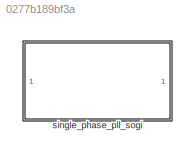
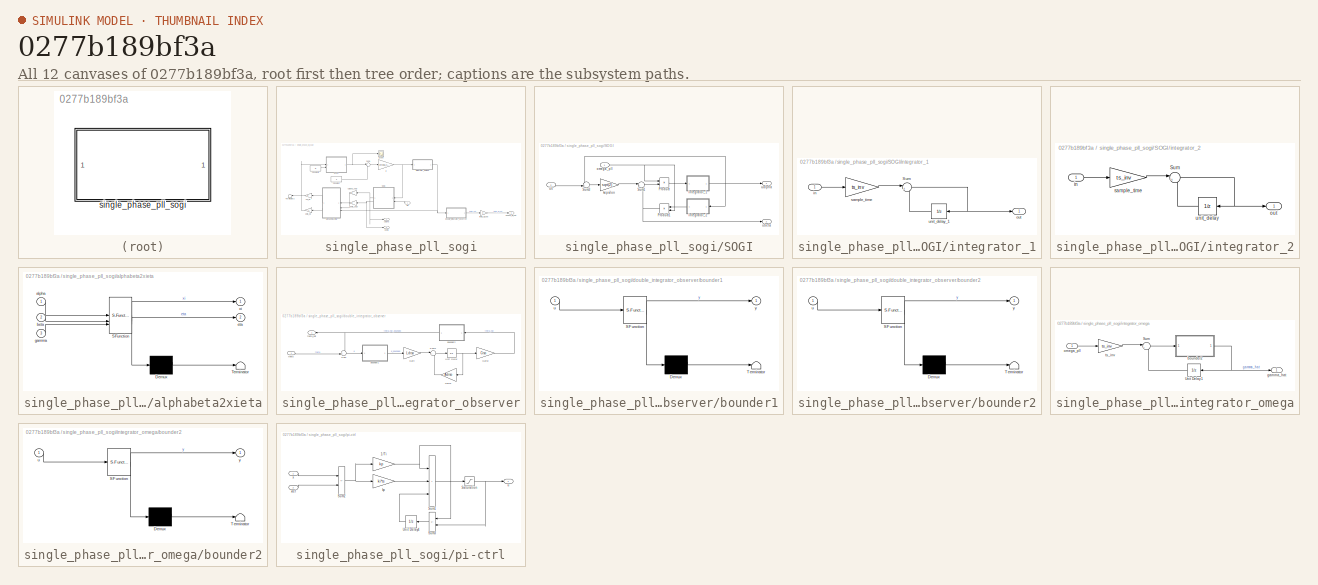
[diagram: thumbnail index - all 12 canvases of the model, root first then tree order]
MODEL slx_0277b189bf3a
KIND library
CONFIG AbsTol = auto
CONFIG EnableMultiTasking = off
CONFIG FixedStep = auto
CONFIG MaxStep = auto
CONFIG MinStep = auto
CONFIG RelTol = 1e-3
CONFIG SampleTimeConstraint = Unconstrained
CONFIG SolverName = VariableStepAuto
CONFIG StartTime = 0.0
CONFIG StopTime = 10.0
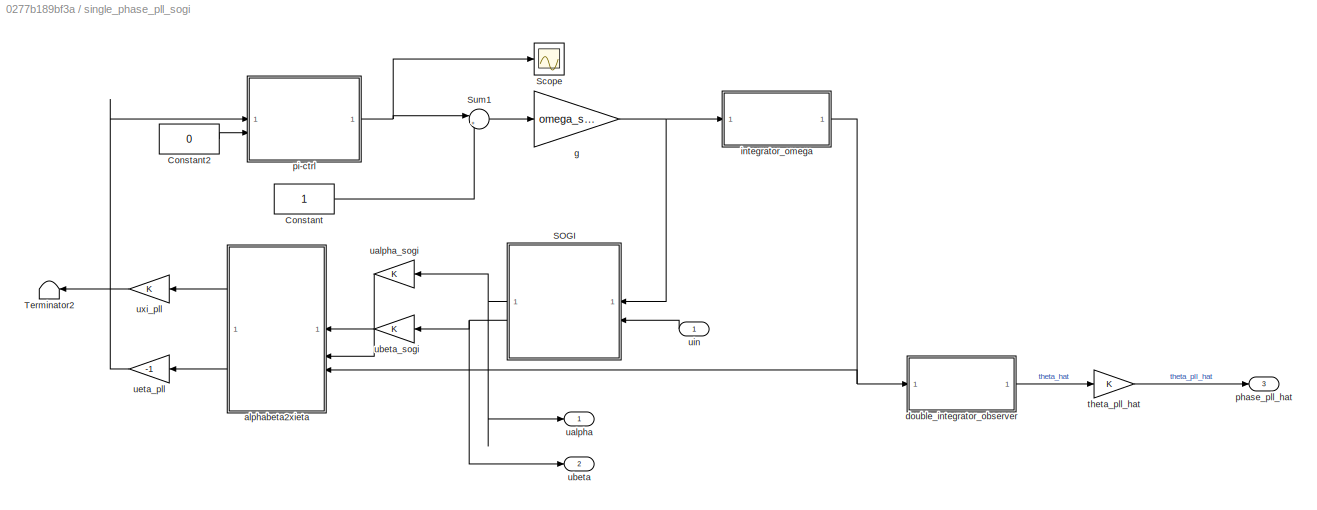
BLOCK [SubSystem] single_phase_pll_sogi
BLOCK [Constant] single_phase_pll_sogi/Constant
BLOCK [Constant] single_phase_pll_sogi/Constant2
  Value = 0
BLOCK [SubSystem] single_phase_pll_sogi/SOGI
BLOCK [Product] single_phase_pll_sogi/SOGI/Product
BLOCK [Product] single_phase_pll_sogi/SOGI/Product1
BLOCK [Sum] single_phase_pll_sogi/SOGI/Sum1
  Inputs = |+-
  NameLocation = top
BLOCK [Sum] single_phase_pll_sogi/SOGI/Sum3
  Inputs = -+|
BLOCK [SubSystem] single_phase_pll_sogi/SOGI/integrator_1
BLOCK [Sum] single_phase_pll_sogi/SOGI/integrator_1/Sum
  Inputs = |++
BLOCK [Inport] single_phase_pll_sogi/SOGI/integrator_1/in
BLOCK [Outport] single_phase_pll_sogi/SOGI/integrator_1/out
BLOCK [Gain] single_phase_pll_sogi/SOGI/integrator_1/sample_time
  Gain = ts_inv
BLOCK [UnitDelay] single_phase_pll_sogi/SOGI/integrator_1/unit_delay_1
  HasFrameUpgradeWarning = on
  SampleTime = -1
BLOCK [SubSystem] single_phase_pll_sogi/SOGI/integrator_2
BLOCK [Sum] single_phase_pll_sogi/SOGI/integrator_2/Sum
  Inputs = |++
BLOCK [Inport] single_phase_pll_sogi/SOGI/integrator_2/in
BLOCK [Outport] single_phase_pll_sogi/SOGI/integrator_2/out
BLOCK [Gain] single_phase_pll_sogi/SOGI/integrator_2/sample_time
  Gain = ts_inv
BLOCK [UnitDelay] single_phase_pll_sogi/SOGI/integrator_2/unit_delay
  HasFrameUpgradeWarning = on
  SampleTime = -1
BLOCK [Gain] single_phase_pll_sogi/SOGI/kepsilon
  Gain = sqrt(2)
BLOCK [Inport] single_phase_pll_sogi/SOGI/omega_pll
BLOCK [Outport] single_phase_pll_sogi/SOGI/ualpha
BLOCK [Outport] single_phase_pll_sogi/SOGI/ubeta
  Port = 2
BLOCK [Inport] single_phase_pll_sogi/SOGI/us
  Port = 2
BLOCK [Scope] single_phase_pll_sogi/Scope
  ActiveDisplayYMaximum = 0.046740470703918784
  ActiveDisplayYMinimum = -0.035554129963767195
  DataLoggingVariableName = ScopeData16
  Floating = off
  GraphicalSettings = {"Style":{"BackgroundColor":[0.12941176470588237,0.12941176470588237,0.12941176470588237],"AxesColor":[0.07058823529411765,0.07058823529411765,0.07058823529411765],"LabelsColor":[0.8509803921568627,0.8509803921568627,0.8509803921568627],"PreserveColors":false,"Visible":[true],"LineStyle":["-"],"LineWidth":[1.5],"BarWidth":[0.9],"LineColor":["auto"],"LineFaceAlpha":[1],"LineEdgeAlpha":[1],"Marker":...<+2005ch>
  MultipleDisplayCache = [{"MaxYLimMag":2.4684250178246252,"MaxYLimReal":0.046740470703918784,"MinYLimMag":0,"MinYLimReal":-0.035554129963767195,"PlotAsMagnitudePhase":false,"ShowGrid":true,"ShowLegend":false,"Title":"%<SignalLabel>","YLabel":""}]
  NumInputPorts = 1
  ScopeFrameLocation = window
  WasSavedAsWebScope = on
  WindowPosition = [744.000000,330.000000,560.000000,420.000000,]
BLOCK [Sum] single_phase_pll_sogi/Sum1
  Inputs = |++
BLOCK [Terminator] single_phase_pll_sogi/Terminator2
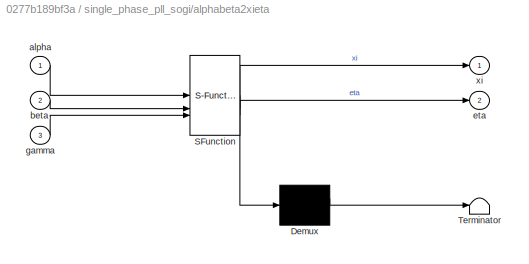
BLOCK [SubSystem] single_phase_pll_sogi/alphabeta2xieta
  ErrorFcn = Stateflow.Translate.translate
  PermitHierarchicalResolution = ExplicitOnly
  SFBlockType = MATLAB Function
  TreatAsAtomicUnit = on
BLOCK [Demux] single_phase_pll_sogi/alphabeta2xieta/ Demux 
  Outputs = 1
BLOCK [S-Function] single_phase_pll_sogi/alphabeta2xieta/ SFunction 
  EnableBusSupport = off
  FunctionName = sf_sfun
  PortCounts = [3 3]
  SFcnIsStateOwnerBlock = off
  SFunctionDeploymentMode = off
  Tag = Stateflow S-Function 8
BLOCK [Terminator] single_phase_pll_sogi/alphabeta2xieta/ Terminator 
BLOCK [Inport] single_phase_pll_sogi/alphabeta2xieta/alpha
BLOCK [Inport] single_phase_pll_sogi/alphabeta2xieta/beta
  Port = 2
BLOCK [Outport] single_phase_pll_sogi/alphabeta2xieta/eta
  Port = 2
BLOCK [Inport] single_phase_pll_sogi/alphabeta2xieta/gamma
  Port = 3
BLOCK [Outport] single_phase_pll_sogi/alphabeta2xieta/xi
BLOCK [SubSystem] single_phase_pll_sogi/double_integrator_observer
BLOCK [Gain] single_phase_pll_sogi/double_integrator_observer/Gain
  Gain = Ldrso
  Multiplication = Matrix(K*u)
BLOCK [Gain] single_phase_pll_sogi/double_integrator_observer/Gain1
  Gain = Adrso
  Multiplication = Matrix(K*u)
  NameLocation = top
BLOCK [Gain] single_phase_pll_sogi/double_integrator_observer/Gain2
  Gain = Crso
  Multiplication = Matrix(K*u)
BLOCK [Sum] single_phase_pll_sogi/double_integrator_observer/Sum
  Inputs = -+|
BLOCK [Sum] single_phase_pll_sogi/double_integrator_observer/Sum1
  Inputs = |++
BLOCK [UnitDelay] single_phase_pll_sogi/double_integrator_observer/Unit Delay
  HasFrameUpgradeWarning = on
  SampleTime = -1
BLOCK [SubSystem] single_phase_pll_sogi/double_integrator_observer/bounder1
  ErrorFcn = Stateflow.Translate.translate
  PermitHierarchicalResolution = ExplicitOnly
  SFBlockType = MATLAB Function
  TreatAsAtomicUnit = on
  TreatAsGroupedWhenPropagatingVariantConditions = off
BLOCK [Demux] single_phase_pll_sogi/double_integrator_observer/bounder1/ Demux 
  Outputs = 1
BLOCK [S-Function] single_phase_pll_sogi/double_integrator_observer/bounder1/ SFunction 
  EnableBusSupport = off
  FunctionName = sf_sfun
  PortCounts = [1 2]
  SFcnIsStateOwnerBlock = off
  SFunctionDeploymentMode = off
  Tag = Stateflow S-Function 10
BLOCK [Terminator] single_phase_pll_sogi/double_integrator_observer/bounder1/ Terminator 
BLOCK [Inport] single_phase_pll_sogi/double_integrator_observer/bounder1/u
BLOCK [Outport] single_phase_pll_sogi/double_integrator_observer/bounder1/y
  VectorParamsAs1DForOutWhenUnconnected = off
BLOCK [SubSystem] single_phase_pll_sogi/double_integrator_observer/bounder2
  ErrorFcn = Stateflow.Translate.translate
  PermitHierarchicalResolution = ExplicitOnly
  SFBlockType = MATLAB Function
  TreatAsAtomicUnit = on
  TreatAsGroupedWhenPropagatingVariantConditions = off
BLOCK [Demux] single_phase_pll_sogi/double_integrator_observer/bounder2/ Demux 
  Outputs = 1
BLOCK [S-Function] single_phase_pll_sogi/double_integrator_observer/bounder2/ SFunction 
  EnableBusSupport = off
  FunctionName = sf_sfun
  PortCounts = [1 2]
  SFcnIsStateOwnerBlock = off
  SFunctionDeploymentMode = off
  Tag = Stateflow S-Function 11
BLOCK [Terminator] single_phase_pll_sogi/double_integrator_observer/bounder2/ Terminator 
BLOCK [Inport] single_phase_pll_sogi/double_integrator_observer/bounder2/u
BLOCK [Outport] single_phase_pll_sogi/double_integrator_observer/bounder2/y
  VectorParamsAs1DForOutWhenUnconnected = off
BLOCK [Inport] single_phase_pll_sogi/double_integrator_observer/theta
BLOCK [Outport] single_phase_pll_sogi/double_integrator_observer/theta_hat
BLOCK [Gain] single_phase_pll_sogi/g
  Gain = omega_set
  NameLocation = top
BLOCK [SubSystem] single_phase_pll_sogi/integrator_omega
BLOCK [Sum] single_phase_pll_sogi/integrator_omega/Sum
  Inputs = |++
BLOCK [UnitDelay] single_phase_pll_sogi/integrator_omega/Unit Delay1
  HasFrameUpgradeWarning = on
  SampleTime = -1
BLOCK [SubSystem] single_phase_pll_sogi/integrator_omega/bounder2
  ErrorFcn = Stateflow.Translate.translate
  PermitHierarchicalResolution = ExplicitOnly
  SFBlockType = MATLAB Function
  TreatAsAtomicUnit = on
  TreatAsGroupedWhenPropagatingVariantConditions = off
BLOCK [Demux] single_phase_pll_sogi/integrator_omega/bounder2/ Demux 
  Outputs = 1
BLOCK [S-Function] single_phase_pll_sogi/integrator_omega/bounder2/ SFunction 
  EnableBusSupport = off
  FunctionName = sf_sfun
  PortCounts = [1 2]
  SFcnIsStateOwnerBlock = off
  SFunctionDeploymentMode = off
  Tag = Stateflow S-Function 9
BLOCK [Terminator] single_phase_pll_sogi/integrator_omega/bounder2/ Terminator 
BLOCK [Inport] single_phase_pll_sogi/integrator_omega/bounder2/u
BLOCK [Outport] single_phase_pll_sogi/integrator_omega/bounder2/y
  VectorParamsAs1DForOutWhenUnconnected = off
BLOCK [Outport] single_phase_pll_sogi/integrator_omega/gamma_hat
BLOCK [Inport] single_phase_pll_sogi/integrator_omega/omega_pll
BLOCK [Gain] single_phase_pll_sogi/integrator_omega/ts_inv
  Gain = ts_inv
BLOCK [Outport] single_phase_pll_sogi/phase_pll_hat
  Port = 3
BLOCK [SubSystem] single_phase_pll_sogi/pi-ctrl
BLOCK [Gain] single_phase_pll_sogi/pi-ctrl/1//Ti
  Gain = kp
  OutDataTypeStr = Inherit: Same as input
  ParamDataTypeStr = Inherit: Same as input
  SaturateOnIntegerOverflow = on
BLOCK [Saturate] single_phase_pll_sogi/pi-ctrl/Saturation
  LowerLimit = sat_neg
  UpperLimit = sat_pos
BLOCK [Sum] single_phase_pll_sogi/pi-ctrl/Sum1
  IconShape = rectangular
  Inputs = +++
  SaturateOnIntegerOverflow = on
BLOCK [Sum] single_phase_pll_sogi/pi-ctrl/Sum2
  IconShape = rectangular
  Inputs = -+
  SaturateOnIntegerOverflow = on
BLOCK [Sum] single_phase_pll_sogi/pi-ctrl/Sum3
  IconShape = rectangular
  Inputs = -+
  NameLocation = top
  SaturateOnIntegerOverflow = on
BLOCK [UnitDelay] single_phase_pll_sogi/pi-ctrl/Unit Delay4
  HasFrameUpgradeWarning = on
  SampleTime = -1
BLOCK [Gain] single_phase_pll_sogi/pi-ctrl/kp
  Gain = ki*ts
  OutDataTypeStr = Inherit: Same as input
  ParamDataTypeStr = Inherit: Same as input
  SaturateOnIntegerOverflow = on
BLOCK [Outport] single_phase_pll_sogi/pi-ctrl/u
BLOCK [Inport] single_phase_pll_sogi/pi-ctrl/x
BLOCK [Inport] single_phase_pll_sogi/pi-ctrl/xref
  Port = 2
BLOCK [Gain] single_phase_pll_sogi/theta_pll_hat
BLOCK [Outport] single_phase_pll_sogi/ualpha
BLOCK [Gain] single_phase_pll_sogi/ualpha_sogi
BLOCK [Outport] single_phase_pll_sogi/ubeta
  Port = 2
BLOCK [Gain] single_phase_pll_sogi/ubeta_sogi
BLOCK [Gain] single_phase_pll_sogi/ueta_pll
  Gain = -1
BLOCK [Inport] single_phase_pll_sogi/uin
BLOCK [Gain] single_phase_pll_sogi/uxi_pll
LINE single_phase_pll_sogi/Constant2:1 -> single_phase_pll_sogi/pi-ctrl:2
LINE single_phase_pll_sogi/Constant:1 -> single_phase_pll_sogi/Sum1:2
NET single_phase_pll_sogi/SOGI/Product1:1 -> single_phase_pll_sogi/SOGI/Sum1:2, single_phase_pll_sogi/SOGI/ubeta:1
LINE single_phase_pll_sogi/SOGI/Product:1 -> single_phase_pll_sogi/SOGI/integrator_1:1
LINE single_phase_pll_sogi/SOGI/Sum1:1 -> single_phase_pll_sogi/SOGI/Product:2
LINE single_phase_pll_sogi/SOGI/Sum3:1 -> single_phase_pll_sogi/SOGI/kepsilon:1
NET single_phase_pll_sogi/SOGI/integrator_1/Sum:1 -> single_phase_pll_sogi/SOGI/integrator_1/out:1, single_phase_pll_sogi/SOGI/integrator_1/unit_delay_1:1
LINE single_phase_pll_sogi/SOGI/integrator_1/in:1 -> single_phase_pll_sogi/SOGI/integrator_1/sample_time:1
LINE single_phase_pll_sogi/SOGI/integrator_1/sample_time:1 -> single_phase_pll_sogi/SOGI/integrator_1/Sum:1
LINE single_phase_pll_sogi/SOGI/integrator_1/unit_delay_1:1 -> single_phase_pll_sogi/SOGI/integrator_1/Sum:2
NET single_phase_pll_sogi/SOGI/integrator_1:1 -> single_phase_pll_sogi/SOGI/Sum3:1, single_phase_pll_sogi/SOGI/integrator_2:1, single_phase_pll_sogi/SOGI/ualpha:1
NET single_phase_pll_sogi/SOGI/integrator_2/Sum:1 -> single_phase_pll_sogi/SOGI/integrator_2/out:1, single_phase_pll_sogi/SOGI/integrator_2/unit_delay:1
LINE single_phase_pll_sogi/SOGI/integrator_2/in:1 -> single_phase_pll_sogi/SOGI/integrator_2/sample_time:1
LINE single_phase_pll_sogi/SOGI/integrator_2/sample_time:1 -> single_phase_pll_sogi/SOGI/integrator_2/Sum:1
LINE single_phase_pll_sogi/SOGI/integrator_2/unit_delay:1 -> single_phase_pll_sogi/SOGI/integrator_2/Sum:2
LINE single_phase_pll_sogi/SOGI/integrator_2:1 -> single_phase_pll_sogi/SOGI/Product1:1
LINE single_phase_pll_sogi/SOGI/kepsilon:1 -> single_phase_pll_sogi/SOGI/Sum1:1
NET single_phase_pll_sogi/SOGI/omega_pll:1 -> single_phase_pll_sogi/SOGI/Product1:2, single_phase_pll_sogi/SOGI/Product:1
LINE single_phase_pll_sogi/SOGI/us:1 -> single_phase_pll_sogi/SOGI/Sum3:2
NET single_phase_pll_sogi/SOGI:1 -> single_phase_pll_sogi/ualpha:1, single_phase_pll_sogi/ualpha_sogi:1
NET single_phase_pll_sogi/SOGI:2 -> single_phase_pll_sogi/ubeta:1, single_phase_pll_sogi/ubeta_sogi:1
LINE single_phase_pll_sogi/Sum1:1 -> single_phase_pll_sogi/g:1
LINE single_phase_pll_sogi/alphabeta2xieta:1 -> single_phase_pll_sogi/uxi_pll:1
LINE single_phase_pll_sogi/alphabeta2xieta:2 -> single_phase_pll_sogi/ueta_pll:1
LINE single_phase_pll_sogi/double_integrator_observer/Gain1:1 -> single_phase_pll_sogi/double_integrator_observer/Sum1:2
LINE single_phase_pll_sogi/double_integrator_observer/Gain2:1 -> single_phase_pll_sogi/double_integrator_observer/bounder2:1
LINE single_phase_pll_sogi/double_integrator_observer/Gain:1 -> single_phase_pll_sogi/double_integrator_observer/Sum1:1
LINE single_phase_pll_sogi/double_integrator_observer/Sum1:1 -> single_phase_pll_sogi/double_integrator_observer/Unit Delay:1
LINE single_phase_pll_sogi/double_integrator_observer/Sum:1 -> single_phase_pll_sogi/double_integrator_observer/bounder1:1
NET single_phase_pll_sogi/double_integrator_observer/Unit Delay:1 -> single_phase_pll_sogi/double_integrator_observer/Gain1:1, single_phase_pll_sogi/double_integrator_observer/Gain2:1
LINE single_phase_pll_sogi/double_integrator_observer/bounder1:1 -> single_phase_pll_sogi/double_integrator_observer/Gain:1
NET single_phase_pll_sogi/double_integrator_observer/bounder2:1 -> single_phase_pll_sogi/double_integrator_observer/Sum:1, single_phase_pll_sogi/double_integrator_observer/theta_hat:1
LINE single_phase_pll_sogi/double_integrator_observer/theta:1 -> single_phase_pll_sogi/double_integrator_observer/Sum:2
LINE single_phase_pll_sogi/double_integrator_observer:1 -> single_phase_pll_sogi/theta_pll_hat:1
NET single_phase_pll_sogi/g:1 -> single_phase_pll_sogi/SOGI:1, single_phase_pll_sogi/integrator_omega:1
LINE single_phase_pll_sogi/integrator_omega/Sum:1 -> single_phase_pll_sogi/integrator_omega/bounder2:1
LINE single_phase_pll_sogi/integrator_omega/Unit Delay1:1 -> single_phase_pll_sogi/integrator_omega/Sum:2
NET single_phase_pll_sogi/integrator_omega/bounder2:1 -> single_phase_pll_sogi/integrator_omega/Unit Delay1:1, single_phase_pll_sogi/integrator_omega/gamma_hat:1
LINE single_phase_pll_sogi/integrator_omega/omega_pll:1 -> single_phase_pll_sogi/integrator_omega/ts_inv:1
LINE single_phase_pll_sogi/integrator_omega/ts_inv:1 -> single_phase_pll_sogi/integrator_omega/Sum:1
NET single_phase_pll_sogi/integrator_omega:1 -> single_phase_pll_sogi/alphabeta2xieta:3, single_phase_pll_sogi/double_integrator_observer:1
NET single_phase_pll_sogi/pi-ctrl/1//Ti:1 -> single_phase_pll_sogi/pi-ctrl/Sum1:1, single_phase_pll_sogi/pi-ctrl/Sum3:1
NET single_phase_pll_sogi/pi-ctrl/Saturation:1 -> single_phase_pll_sogi/pi-ctrl/Sum3:2, single_phase_pll_sogi/pi-ctrl/u:1
LINE single_phase_pll_sogi/pi-ctrl/Sum1:1 -> single_phase_pll_sogi/pi-ctrl/Saturation:1
NET single_phase_pll_sogi/pi-ctrl/Sum2:1 -> single_phase_pll_sogi/pi-ctrl/1//Ti:1, single_phase_pll_sogi/pi-ctrl/kp:1
LINE single_phase_pll_sogi/pi-ctrl/Sum3:1 -> single_phase_pll_sogi/pi-ctrl/Unit Delay4:1
LINE single_phase_pll_sogi/pi-ctrl/Unit Delay4:1 -> single_phase_pll_sogi/pi-ctrl/Sum1:3
LINE single_phase_pll_sogi/pi-ctrl/kp:1 -> single_phase_pll_sogi/pi-ctrl/Sum1:2
LINE single_phase_pll_sogi/pi-ctrl/x:1 -> single_phase_pll_sogi/pi-ctrl/Sum2:1
LINE single_phase_pll_sogi/pi-ctrl/xref:1 -> single_phase_pll_sogi/pi-ctrl/Sum2:2
NET single_phase_pll_sogi/pi-ctrl:1 -> single_phase_pll_sogi/Scope:1, single_phase_pll_sogi/Sum1:1
LINE single_phase_pll_sogi/theta_pll_hat:1 -> single_phase_pll_sogi/phase_pll_hat:1
LINE single_phase_pll_sogi/ualpha_sogi:1 -> single_phase_pll_sogi/alphabeta2xieta:1
LINE single_phase_pll_sogi/ubeta_sogi:1 -> single_phase_pll_sogi/alphabeta2xieta:2
LINE single_phase_pll_sogi/ueta_pll:1 -> single_phase_pll_sogi/pi-ctrl:1
LINE single_phase_pll_sogi/uin:1 -> single_phase_pll_sogi/SOGI:2
LINE single_phase_pll_sogi/uxi_pll:1 -> single_phase_pll_sogi/Terminator2:1
note: NET lines group one-source signal fan-out (src -> all destinations, sorted); 1:1 wires keep LINE
CHART single_phase_pll_sogi/alphabeta2xieta states=1 transitions=1
  STATE_LABEL 'eML_blk_kernel()'
  STATE_LABEL 'SCRIPT:\nfunction [xi,eta] = alphabeta2xieta(alpha,beta,gamma)\n    xi  =  alpha*cos(gamma) + beta*sin(gamma);\n    eta = -alpha*sin(gamma) + beta*cos(gamma);\nend\n'
CHART single_phase_pll_sogi/integrator_omega/bounder2 states=1 transitions=1
  STATE_LABEL 'eML_blk_kernel()'
  STATE_LABEL 'SCRIPT:\nfunction y = bounder(u)\n    \n    y = -pi + mod(u+3*pi,2*pi);\n   \nend\n\n'
CHART single_phase_pll_sogi/double_integrator_observer/bounder1 states=1 transitions=1
  STATE_LABEL 'eML_blk_kernel()'
  STATE_LABEL 'SCRIPT:\nfunction y = bounder(u)\n    \n    y = -pi + mod(u+3*pi,2*pi);\n   \nend\n\n'
CHART single_phase_pll_sogi/double_integrator_observer/bounder2 states=1 transitions=1
  STATE_LABEL 'eML_blk_kernel()'
  STATE_LABEL 'SCRIPT:\nfunction y = bounder(u)\n    \n    y = -pi + mod(u+3*pi,2*pi);\n   \nend\n\n'
CHART  states=0 transitions=0
CHART  states=0 transitions=0
CHART  states=0 transitions=0
CHART  states=0 transitions=0
